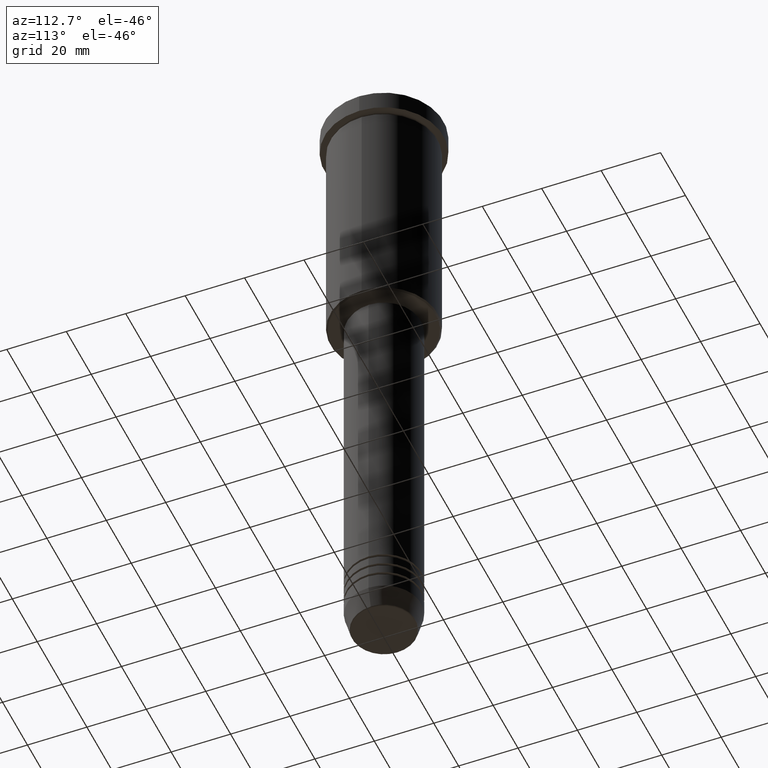
[diagram: clean part render]
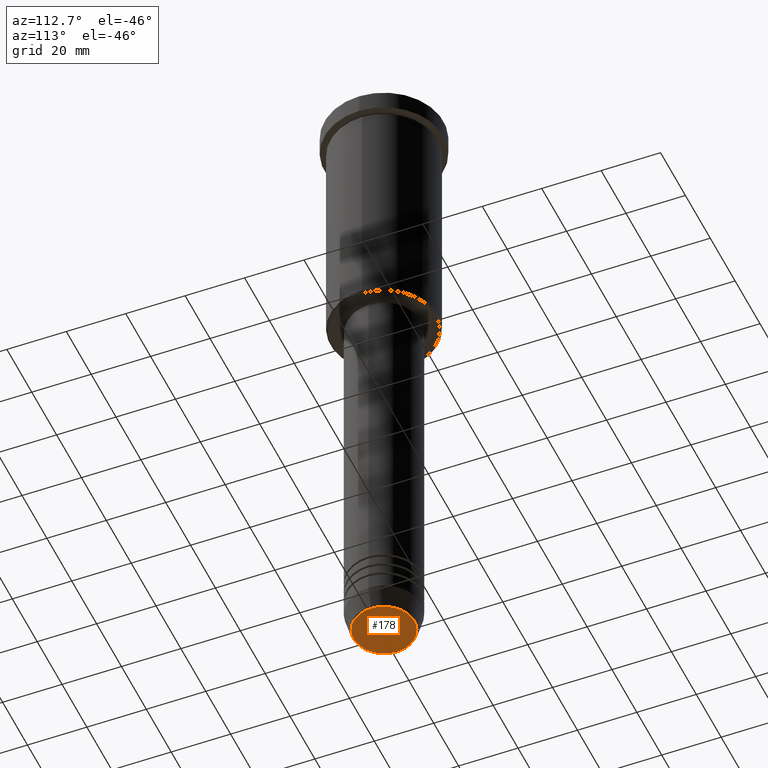
[diagram: same view with one face highlighted and labeled with its STEP entity id]
A machine part, auxiliary view. The second image highlights one B-rep face of the part: STEP entity #178.
In plain terms, the highlighted planar face has unit normal (0, -0, 1).
Its self-contained STEP definition (entity closure, byte-faithful):
#10 = FACE_OUTER_BOUND ( 'NONE', #45, .T. ) ;
#33 = DIRECTION ( 'NONE',  ( 1.000000000000000000, 0.000000000000000000, 0.000000000000000000 ) ) ;
#45 = EDGE_LOOP ( 'NONE', ( #158, #362 ) ) ;
#48 = DIRECTION ( 'NONE',  ( 0.000000000000000000, 0.000000000000000000, -1.000000000000000000 ) ) ;
#158 = ORIENTED_EDGE ( 'NONE', *, *, #776, .T. ) ;
#178 = ADVANCED_FACE ( 'NONE', ( #10 ), #356, .F. ) ;
#193 = VERTEX_POINT ( 'NONE', #414 ) ;
#356 = PLANE ( 'NONE',  #702 ) ;
#362 = ORIENTED_EDGE ( 'NONE', *, *, #1110, .T. ) ;
#414 = CARTESIAN_POINT ( 'NONE',  ( -10.24069215899266538, 1.283696036640842967E-15, -219.9999999999999716 ) ) ;
#419 = AXIS2_PLACEMENT_3D ( 'NONE', #689, #48, #1153 ) ;
#428 = VERTEX_POINT ( 'NONE', #1014 ) ;
#647 = CIRCLE ( 'NONE', #419, 10.24069215899266538 ) ;
#689 = CARTESIAN_POINT ( 'NONE',  ( 0.000000000000000000, 0.000000000000000000, -219.9999999999999716 ) ) ;
#702 = AXIS2_PLACEMENT_3D ( 'NONE', #751, #1097, #1101 ) ;
#728 = CIRCLE ( 'NONE', #823, 10.24069215899266538 ) ;
#751 = CARTESIAN_POINT ( 'NONE',  ( 0.000000000000000000, 0.000000000000000000, -219.9999999999999716 ) ) ;
#776 = EDGE_CURVE ( 'NONE', #428, #193, #728, .T. ) ;
#823 = AXIS2_PLACEMENT_3D ( 'NONE', #849, #1120, #33 ) ;
#849 = CARTESIAN_POINT ( 'NONE',  ( 0.000000000000000000, 0.000000000000000000, -219.9999999999999716 ) ) ;
#1014 = CARTESIAN_POINT ( 'NONE',  ( 10.24069215899266538, 0.000000000000000000, -219.9999999999999716 ) ) ;
#1097 = DIRECTION ( 'NONE',  ( 0.000000000000000000, -0.000000000000000000, 1.000000000000000000 ) ) ;
#1101 = DIRECTION ( 'NONE',  ( 1.000000000000000000, 0.000000000000000000, 0.000000000000000000 ) ) ;
#1110 = EDGE_CURVE ( 'NONE', #193, #428, #647, .T. ) ;
#1120 = DIRECTION ( 'NONE',  ( 0.000000000000000000, 0.000000000000000000, -1.000000000000000000 ) ) ;
#1153 = DIRECTION ( 'NONE',  ( 1.000000000000000000, 0.000000000000000000, 0.000000000000000000 ) ) ;